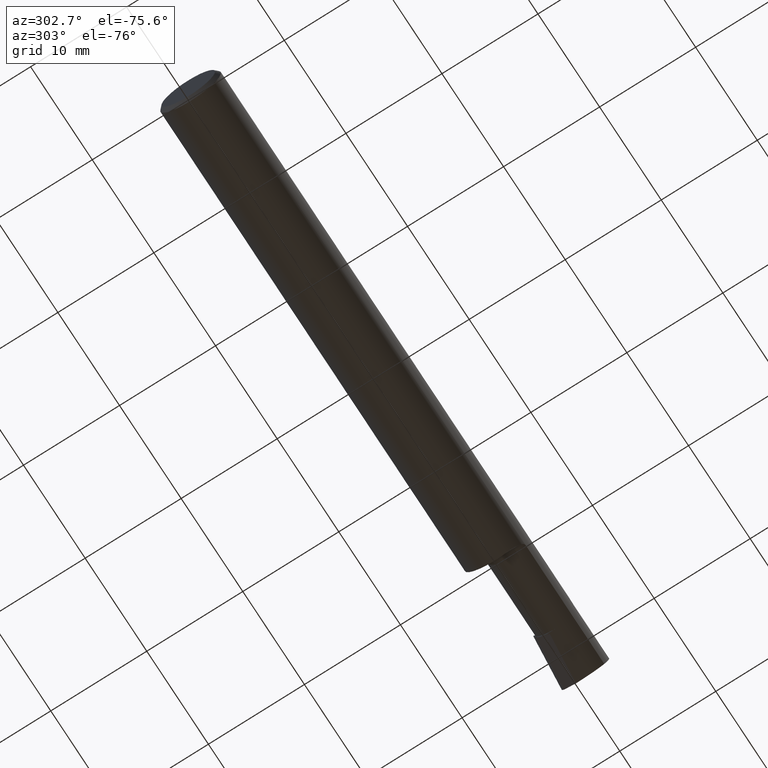
[diagram: clean part render]
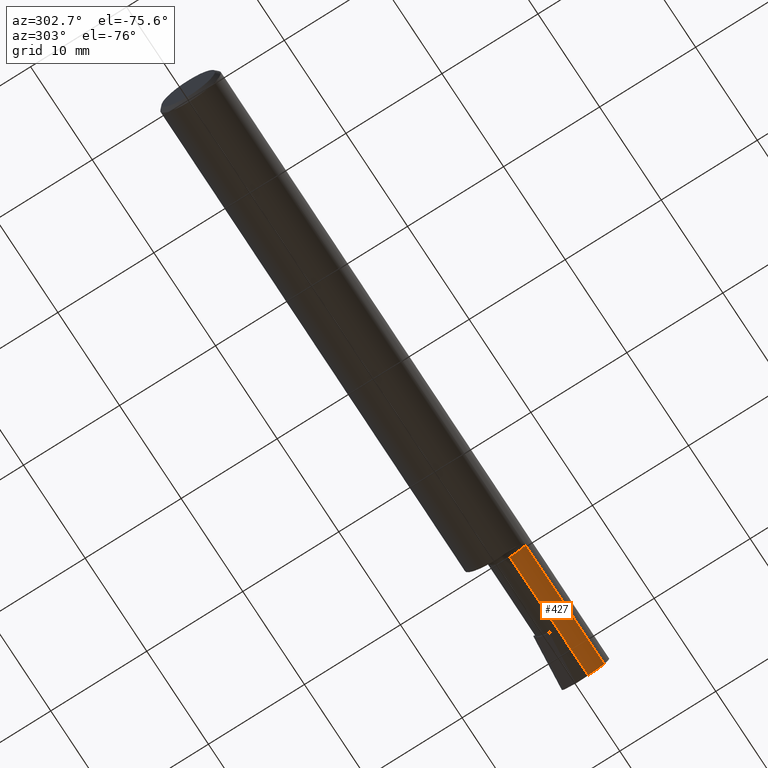
[diagram: same view with one face highlighted and labeled with its STEP entity id]
A machine part, auxiliary view. The second image highlights one B-rep face of the part: STEP entity #427.
In plain terms, the highlighted cylindrical surface (edge-blend (fillet) strip) has radius 2.2644 mm, axis along (-1, -0, -0).
Its self-contained STEP definition (entity closure, byte-faithful):
#3 = CARTESIAN_POINT ( 'NONE',  ( 2.487716879513912627, -0.1088159090909091575, -0.06120964326573871683 ) ) ;
#39 = AXIS2_PLACEMENT_3D ( 'NONE', #452, #52, #49 ) ;
#49 = DIRECTION ( 'NONE',  ( 0.0000000000000000000, 0.0000000000000000000, 1.000000000000000000 ) ) ;
#52 = DIRECTION ( 'NONE',  ( -1.000000000000000000, -0.0000000000000000000, -0.0000000000000000000 ) ) ;
#60 = CARTESIAN_POINT ( 'NONE',  ( 2.485982323393565174, -0.04399999999999999745, -0.08914999999999999314 ) ) ;
#64 = VERTEX_POINT ( 'NONE', #597 ) ;
#71 = ORIENTED_EDGE ( 'NONE', *, *, #344, .F. ) ;
#117 = EDGE_CURVE ( 'NONE', #667, #456, #213, .T. ) ;
#121 = VECTOR ( 'NONE', #343, 39.37007874015748143 ) ;
#130 = CARTESIAN_POINT ( 'NONE',  ( 2.485942244485980002, -0.09173194857106677091, -0.07930013314426070936 ) ) ;
#132 = VERTEX_POINT ( 'NONE', #548 ) ;
#153 = CARTESIAN_POINT ( 'NONE',  ( 1.985000000000000098, -0.04399999999999997663, -0.08914999999999995151 ) ) ;
#213 = CIRCLE ( 'NONE', #236, 0.08914999999999995151 ) ;
#236 = AXIS2_PLACEMENT_3D ( 'NONE', #607, #606, #280 ) ;
#238 = LINE ( 'NONE', #508, #352 ) ;
#280 = DIRECTION ( 'NONE',  ( 0.0000000000000000000, 0.0000000000000000000, 1.000000000000000000 ) ) ;
#291 = EDGE_CURVE ( 'NONE', #64, #667, #413, .T. ) ;
#306 = CARTESIAN_POINT ( 'NONE',  ( 2.135000000000000231, -0.1088159090909091575, -0.06120964326573871683 ) ) ;
#308 = LINE ( 'NONE', #306, #525 ) ;
#343 = DIRECTION ( 'NONE',  ( -1.000000000000000000, -0.0000000000000000000, -0.0000000000000000000 ) ) ;
#344 = EDGE_CURVE ( 'NONE', #611, #132, #434, .T. ) ;
#352 = VECTOR ( 'NONE', #463, 39.37007874015748143 ) ;
#412 = CARTESIAN_POINT ( 'NONE',  ( 2.485330758133041495, -0.06888227343086723853, -0.08914999999999999314 ) ) ;
#413 = LINE ( 'NONE', #724, #121 ) ;
#420 = DIRECTION ( 'NONE',  ( -1.000000000000000000, -0.0000000000000000000, -0.0000000000000000000 ) ) ;
#427 = ADVANCED_FACE ( 'NONE', ( #689 ), #468, .T. ) ;
#434 =( BOUNDED_CURVE ( )  B_SPLINE_CURVE ( 3, ( #3, #130, #412, #60 ),
 .UNSPECIFIED., .F., .T. ) 
 B_SPLINE_CURVE_WITH_KNOTS ( ( 4, 4 ),
 ( 5.679229040429022213, 6.493234751459756815 ),
 .UNSPECIFIED. ) 
 CURVE ( )  GEOMETRIC_REPRESENTATION_ITEM ( )  RATIONAL_B_SPLINE_CURVE ( ( 1.000000000000000000, 0.9455409277260482526, 0.9455409277260482526, 1.000000000000000000 ) ) 
 REPRESENTATION_ITEM ( '' )  );
#452 = CARTESIAN_POINT ( 'NONE',  ( 0.0000000000000000000, -0.04399999999999999745, 0.0000000000000000000 ) ) ;
#456 = VERTEX_POINT ( 'NONE', #553 ) ;
#463 = DIRECTION ( 'NONE',  ( -1.000000000000000000, 5.691349986800549142E-18, -0.0000000000000000000 ) ) ;
#468 = CYLINDRICAL_SURFACE ( 'NONE', #39, 0.08914999999999997926 ) ;
#508 = CARTESIAN_POINT ( 'NONE',  ( 2.500000000000000000, -0.04399999999999999745, -0.08914999999999999314 ) ) ;
#517 = ORIENTED_EDGE ( 'NONE', *, *, #117, .F. ) ;
#525 = VECTOR ( 'NONE', #420, 39.37007874015748143 ) ;
#534 = EDGE_LOOP ( 'NONE', ( #698, #541, #71, #569, #517 ) ) ;
#541 = ORIENTED_EDGE ( 'NONE', *, *, #549, .F. ) ;
#548 = CARTESIAN_POINT ( 'NONE',  ( 2.485982323393565174, -0.04399999999999999745, -0.08914999999999999314 ) ) ;
#549 = EDGE_CURVE ( 'NONE', #132, #64, #238, .T. ) ;
#553 = CARTESIAN_POINT ( 'NONE',  ( 1.985000000000000098, -0.1088159090909093379, -0.06120964326573849479 ) ) ;
#569 = ORIENTED_EDGE ( 'NONE', *, *, #649, .T. ) ;
#597 = CARTESIAN_POINT ( 'NONE',  ( 2.285000000000000142, -0.04399999999999999745, -0.08914999999999999314 ) ) ;
#606 = DIRECTION ( 'NONE',  ( -1.000000000000000000, -0.0000000000000000000, -0.0000000000000000000 ) ) ;
#607 = CARTESIAN_POINT ( 'NONE',  ( 1.985000000000000098, -0.04399999999999999745, 0.0000000000000000000 ) ) ;
#611 = VERTEX_POINT ( 'NONE', #631 ) ;
#631 = CARTESIAN_POINT ( 'NONE',  ( 2.487716879513912627, -0.1088159090909091575, -0.06120964326573871683 ) ) ;
#649 = EDGE_CURVE ( 'NONE', #611, #456, #308, .T. ) ;
#667 = VERTEX_POINT ( 'NONE', #153 ) ;
#689 = FACE_OUTER_BOUND ( 'NONE', #534, .T. ) ;
#698 = ORIENTED_EDGE ( 'NONE', *, *, #291, .F. ) ;
#724 = CARTESIAN_POINT ( 'NONE',  ( 0.0000000000000000000, -0.04399999999999998357, -0.08914999999999997926 ) ) ;